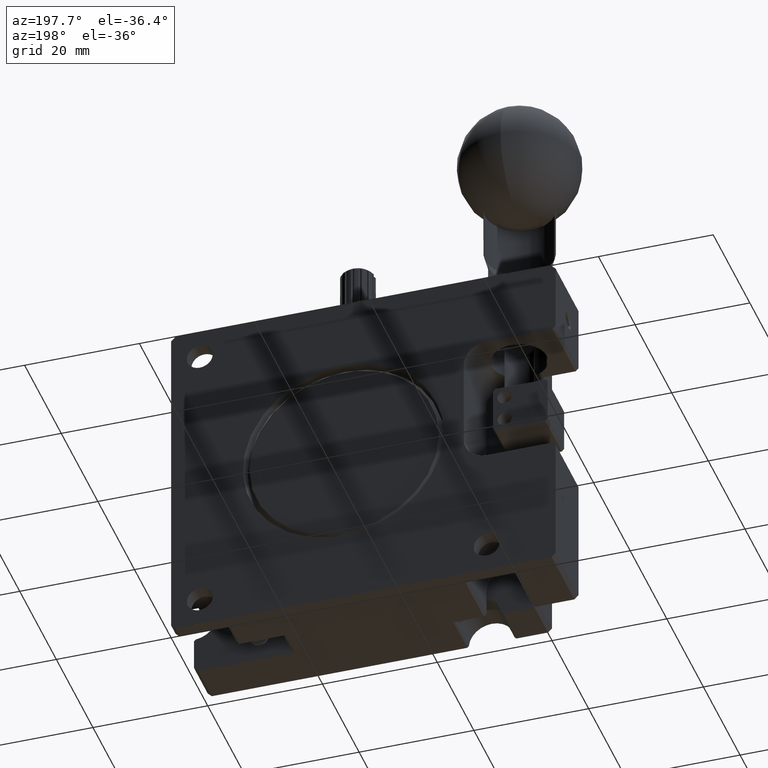
[diagram: clean part render]
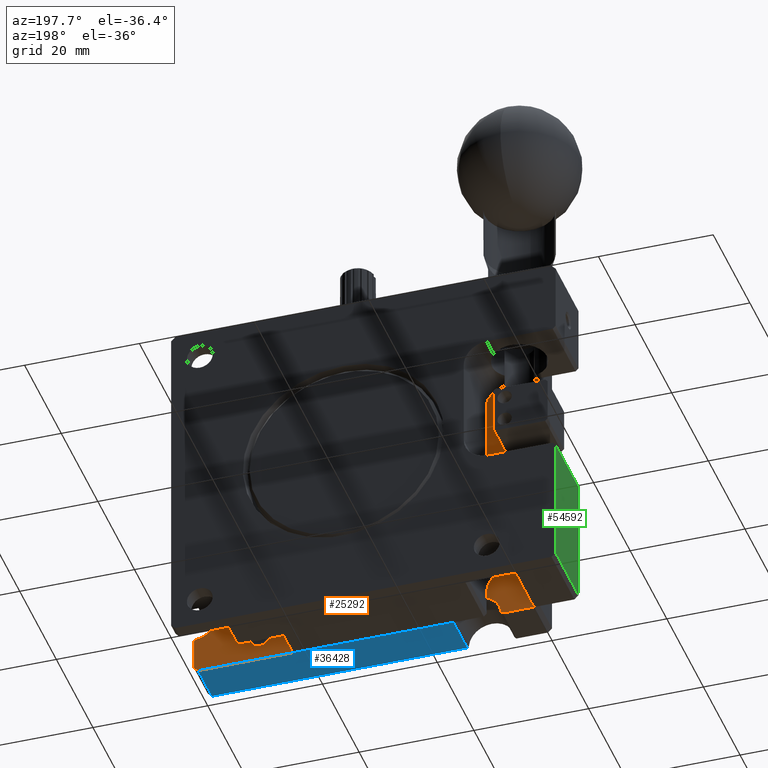
[diagram: same view with three faces highlighted in distinct colors, each labeled with its STEP entity id]
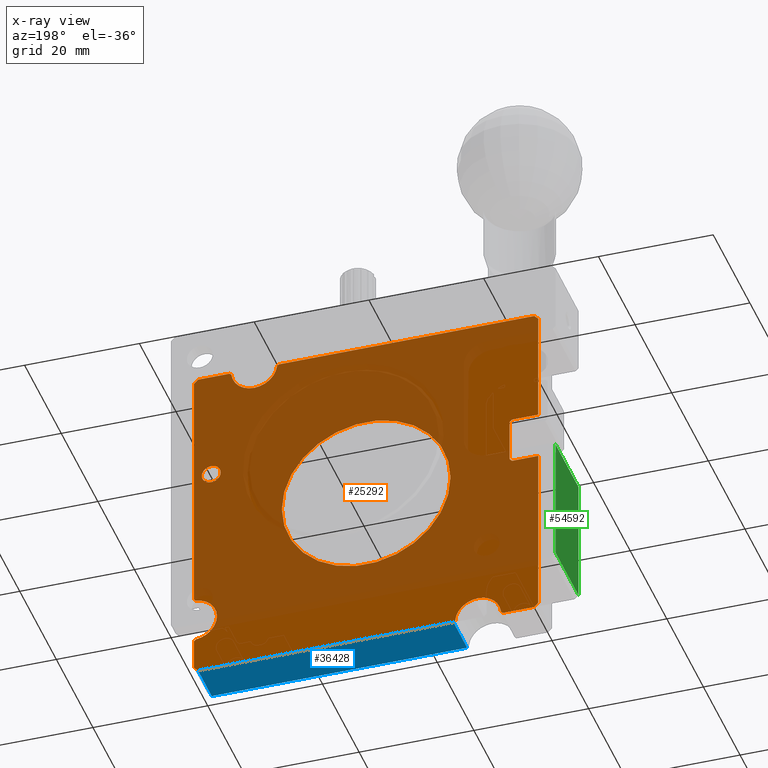
[diagram: x-ray of the same camera — body ghosted, the three highlighted faces saturated]
A machine part, auxiliary view with three faces highlighted in distinct colors.
The next image is the same camera in x-ray (body ghosted, the three faces saturated) — at least one of them is partly hidden behind the body in this view.
Their STEP definitions:

[orange] entity #25292 — the highlighted planar face has unit normal (0, 1, 0).
#106 = ORIENTED_EDGE ( 'NONE', *, *, #36881, .T. ) ;
#427 = VERTEX_POINT ( 'NONE', #36970 ) ;
#567 = CARTESIAN_POINT ( 'NONE',  ( 59.28999999999999915, 7.500000000000000000, 0.000000000000000000 ) ) ;
#590 = DIRECTION ( 'NONE',  ( -0.7071067811865543451, 0.000000000000000000, 0.7071067811865406894 ) ) ;
#1722 = CARTESIAN_POINT ( 'NONE',  ( 14.48799999999975796, 7.500000000000000000, -59.69999999999664198 ) ) ;
#1993 = DIRECTION ( 'NONE',  ( 1.000000000000000000, 0.000000000000000000, -0.000000000000000000 ) ) ;
#2150 = LINE ( 'NONE', #2559, #10806 ) ;
#2559 = CARTESIAN_POINT ( 'NONE',  ( 60.00000000000000000, 7.500000000000000000, -45.21000000000000085 ) ) ;
#3375 = ORIENTED_EDGE ( 'NONE', *, *, #36220, .T. ) ;
#3810 = VECTOR ( 'NONE', #19036, 1000.000000000000000 ) ;
#4004 = ORIENTED_EDGE ( 'NONE', *, *, #24379, .T. ) ;
#5490 = AXIS2_PLACEMENT_3D ( 'NONE', #58922, #85340, #52414 ) ;
#5904 = VERTEX_POINT ( 'NONE', #32317 ) ;
#6697 = CIRCLE ( 'NONE', #78703, 4.000000000000000000 ) ;
#7099 = EDGE_CURVE ( 'NONE', #56663, #45364, #52656, .T. ) ;
#7565 = DIRECTION ( 'NONE',  ( 0.000000000000000000, -1.000000000000000000, 0.000000000000000000 ) ) ;
#7750 = EDGE_CURVE ( 'NONE', #24155, #20764, #30688, .T. ) ;
#7981 = EDGE_CURVE ( 'NONE', #15208, #13604, #77046, .T. ) ;
#8414 = DIRECTION ( 'NONE',  ( 0.000000000000000000, 0.000000000000000000, -1.000000000000000000 ) ) ;
#8633 = LINE ( 'NONE', #35050, #14152 ) ;
#9158 = VERTEX_POINT ( 'NONE', #39035 ) ;
#9197 = VECTOR ( 'NONE', #45924, 1000.000000000000000 ) ;
#9247 = VERTEX_POINT ( 'NONE', #1722 ) ;
#10328 = LINE ( 'NONE', #21306, #40061 ) ;
#10457 = CARTESIAN_POINT ( 'NONE',  ( 59.70000000000000284, 7.500000000000000000, -53.48799999999999955 ) ) ;
#10524 = VERTEX_POINT ( 'NONE', #31631 ) ;
#10757 = EDGE_LOOP ( 'NONE', ( #38680 ) ) ;
#10806 = VECTOR ( 'NONE', #81075, 1000.000000000000114 ) ;
#11342 = EDGE_CURVE ( 'NONE', #28762, #10524, #59012, .T. ) ;
#11395 = VERTEX_POINT ( 'NONE', #82700 ) ;
#11409 = CARTESIAN_POINT ( 'NONE',  ( 7.453889935837842984E-16, 7.500000000000000000, -59.29000000000000625 ) ) ;
#12565 = ORIENTED_EDGE ( 'NONE', *, *, #45188, .T. ) ;
#12809 = CARTESIAN_POINT ( 'NONE',  ( 0.000000000000000000, 7.500000000000000000, -0.7100000000000009637 ) ) ;
#12864 = ORIENTED_EDGE ( 'NONE', *, *, #46181, .T. ) ;
#12899 = DIRECTION ( 'NONE',  ( -1.000000000000000000, -0.000000000000000000, 0.000000000000000000 ) ) ;
#12973 = CARTESIAN_POINT ( 'NONE',  ( 0.000000000000000000, 7.500000000000000000, -20.50000000000000000 ) ) ;
#12986 = VECTOR ( 'NONE', #47845, 1000.000000000000114 ) ;
#13069 = VERTEX_POINT ( 'NONE', #84716 ) ;
#13604 = VERTEX_POINT ( 'NONE', #35082 ) ;
#13624 = EDGE_CURVE ( 'NONE', #52301, #16873, #2150, .T. ) ;
#13747 = LINE ( 'NONE', #32409, #80095 ) ;
#14152 = VECTOR ( 'NONE', #47275, 1000.000000000000000 ) ;
#14331 = VECTOR ( 'NONE', #1993, 1000.000000000000000 ) ;
#14380 = EDGE_CURVE ( 'NONE', #67230, #66382, #49006, .T. ) ;
#14420 = CARTESIAN_POINT ( 'NONE',  ( 6.510999999999985910, 7.500000000000000000, -59.69999999999998863 ) ) ;
#14873 = EDGE_CURVE ( 'NONE', #13069, #62828, #6697, .T. ) ;
#14947 = CARTESIAN_POINT ( 'NONE',  ( 60.00000000000000711, 7.500000000000000000, -45.20999999999999375 ) ) ;
#14997 = CARTESIAN_POINT ( 'NONE',  ( 60.00309693169000269, 7.500000000000000000, -49.49950000000000472 ) ) ;
#15208 = VERTEX_POINT ( 'NONE', #51550 ) ;
#16674 = ORIENTED_EDGE ( 'NONE', *, *, #76592, .T. ) ;
#16793 = CIRCLE ( 'NONE', #39009, 1.649999999999950173 ) ;
#16873 = VERTEX_POINT ( 'NONE', #36642 ) ;
#17053 = CARTESIAN_POINT ( 'NONE',  ( 15.29999999999999716, 7.499999999999996447, -30.00000000000000000 ) ) ;
#17135 = CARTESIAN_POINT ( 'NONE',  ( 60.00000000000000000, 7.500000000000000000, -0.7099999999999999645 ) ) ;
#17488 = CARTESIAN_POINT ( 'NONE',  ( 10.50886380215709970, 7.500000000000000000, -60.10801361977959800 ) ) ;
#17884 = AXIS2_PLACEMENT_3D ( 'NONE', #14997, #80541, #41499 ) ;
#18357 = DIRECTION ( 'NONE',  ( 0.000000000000000000, -1.000000000000000000, 0.000000000000000000 ) ) ;
#18700 = CARTESIAN_POINT ( 'NONE',  ( 4.590000000000000746, 7.500000000000000000, -20.50000000000000000 ) ) ;
#18751 = DIRECTION ( 'NONE',  ( -0.7082823511172732234, 0.000000000000000000, -0.7059292536053366485 ) ) ;
#19036 = DIRECTION ( 'NONE',  ( -1.000000000000000000, -0.000000000000000000, 0.000000000000000000 ) ) ;
#20282 = CARTESIAN_POINT ( 'NONE',  ( 59.28999999999999915, 7.500000000000000000, -60.00000000000000000 ) ) ;
#20482 = LINE ( 'NONE', #47011, #21375 ) ;
#20643 = LINE ( 'NONE', #74884, #48299 ) ;
#20661 = EDGE_CURVE ( 'NONE', #76565, #9158, #45177, .T. ) ;
#20764 = VERTEX_POINT ( 'NONE', #25589 ) ;
#21306 = CARTESIAN_POINT ( 'NONE',  ( 5.000000000000000000, 7.500000000000000000, -28.58999999999999986 ) ) ;
#21375 = VECTOR ( 'NONE', #33503, 1000.000000000000000 ) ;
#21959 = VECTOR ( 'NONE', #71669, 1000.000000000000000 ) ;
#22153 = CARTESIAN_POINT ( 'NONE',  ( 59.70000000000001705, 7.500000000000000000, -53.48800000000000665 ) ) ;
#22702 = EDGE_CURVE ( 'NONE', #32796, #76565, #44267, .T. ) ;
#23188 = VECTOR ( 'NONE', #75432, 1000.000000000000114 ) ;
#23489 = CARTESIAN_POINT ( 'NONE',  ( 45.21000000000000085, 7.500000000000000000, 2.768314089472589949E-15 ) ) ;
#24155 = VERTEX_POINT ( 'NONE', #11409 ) ;
#24379 = EDGE_CURVE ( 'NONE', #80639, #67230, #13747, .T. ) ;
#24449 = CARTESIAN_POINT ( 'NONE',  ( 59.90974984192649799, 7.500000000000000000, -49.50549683841389736 ) ) ;
#24846 = CIRCLE ( 'NONE', #53905, 3.999999998536091006 ) ;
#25087 = CARTESIAN_POINT ( 'NONE',  ( 60.00000000000000000, 7.500000000000000000, -59.28999999999999204 ) ) ;
#25292 = ADVANCED_FACE ( 'NONE', ( #71478, #58496, #25444 ), #32389, .T. ) ;
#25444 = FACE_OUTER_BOUND ( 'NONE', #73594, .T. ) ;
#25589 = CARTESIAN_POINT ( 'NONE',  ( 0.000000000000000000, 7.500000000000000000, -29.00000000000000000 ) ) ;
#25810 = EDGE_CURVE ( 'NONE', #62828, #34002, #20643, .T. ) ;
#26024 = CARTESIAN_POINT ( 'NONE',  ( 5.000000000000000000, 7.500000000000000000, 0.000000000000000000 ) ) ;
#26739 = ORIENTED_EDGE ( 'NONE', *, *, #38179, .T. ) ;
#27702 = EDGE_CURVE ( 'NONE', #78949, #28762, #58258, .T. ) ;
#28116 = EDGE_LOOP ( 'NONE', ( #106 ) ) ;
#28762 = VERTEX_POINT ( 'NONE', #55730 ) ;
#29208 = VERTEX_POINT ( 'NONE', #17053 ) ;
#29403 = EDGE_CURVE ( 'NONE', #11395, #52301, #77491, .T. ) ;
#30027 = CARTESIAN_POINT ( 'NONE',  ( 5.000000000000000000, 7.500000000000000000, -20.91000000000000014 ) ) ;
#30688 = LINE ( 'NONE', #52877, #9197 ) ;
#31083 = EDGE_CURVE ( 'NONE', #72475, #13069, #69517, .T. ) ;
#31631 = CARTESIAN_POINT ( 'NONE',  ( 0.000000000000000000, 7.500000000000000000, -20.49999999999999645 ) ) ;
#32151 = VERTEX_POINT ( 'NONE', #72396 ) ;
#32180 = ORIENTED_EDGE ( 'NONE', *, *, #7750, .T. ) ;
#32317 = CARTESIAN_POINT ( 'NONE',  ( 57.00000000000000000, 7.500000000000000000, -21.64999999999994884 ) ) ;
#32389 = PLANE ( 'NONE',  #5490 ) ;
#32409 = CARTESIAN_POINT ( 'NONE',  ( 59.28999999999999915, 7.500000000000000000, -60.00000000000000000 ) ) ;
#32796 = VERTEX_POINT ( 'NONE', #61739 ) ;
#33130 = VECTOR ( 'NONE', #83975, 1000.000000000000000 ) ;
#33503 = DIRECTION ( 'NONE',  ( 1.000000000000000000, -0.000000000000000000, 0.000000000000000000 ) ) ;
#33999 = ORIENTED_EDGE ( 'NONE', *, *, #72603, .T. ) ;
#34002 = VERTEX_POINT ( 'NONE', #48071 ) ;
#35050 = CARTESIAN_POINT ( 'NONE',  ( 0.000000000000000000, 7.500000000000000000, -59.28999999999999915 ) ) ;
#35082 = CARTESIAN_POINT ( 'NONE',  ( 0.7099999999999999645, 7.500000000000000000, -5.416677968589100837E-32 ) ) ;
#35471 = ORIENTED_EDGE ( 'NONE', *, *, #71784, .T. ) ;
#36220 = EDGE_CURVE ( 'NONE', #45364, #39352, #58976, .T. ) ;
#36642 = CARTESIAN_POINT ( 'NONE',  ( 59.72000000000019071, 7.500000000000000000, -45.50999999999972090 ) ) ;
#36881 = EDGE_CURVE ( 'NONE', #5904, #5904, #16793, .T. ) ;
#36970 = CARTESIAN_POINT ( 'NONE',  ( 5.000000000000000000, 7.500000000000000000, -28.58999999999999986 ) ) ;
#37287 = ORIENTED_EDGE ( 'NONE', *, *, #47081, .T. ) ;
#38077 = ORIENTED_EDGE ( 'NONE', *, *, #69533, .T. ) ;
#38179 = EDGE_CURVE ( 'NONE', #10524, #15208, #8633, .T. ) ;
#38340 = DIRECTION ( 'NONE',  ( 0.000000000000000000, 0.000000000000000000, -1.000000000000000000 ) ) ;
#38680 = ORIENTED_EDGE ( 'NONE', *, *, #77216, .T. ) ;
#39009 = AXIS2_PLACEMENT_3D ( 'NONE', #81647, #67396, #68660 ) ;
#39035 = CARTESIAN_POINT ( 'NONE',  ( 60.00000000000000000, 7.500000000000000000, -53.78900000000000148 ) ) ;
#39352 = VERTEX_POINT ( 'NONE', #47182 ) ;
#40061 = VECTOR ( 'NONE', #47414, 1000.000000000000000 ) ;
#40299 = ORIENTED_EDGE ( 'NONE', *, *, #20661, .T. ) ;
#41499 = DIRECTION ( 'NONE',  ( 0.000000000000000000, 0.000000000000000000, -1.000000000000000000 ) ) ;
#41841 = CARTESIAN_POINT ( 'NONE',  ( 4.590000000000000746, 7.500000000000000000, -29.00000000000000000 ) ) ;
#42034 = VECTOR ( 'NONE', #590, 1000.000000000000000 ) ;
#42054 = CARTESIAN_POINT ( 'NONE',  ( 14.78899999999999970, 7.500000000000000000, -60.00000000000000000 ) ) ;
#42450 = VECTOR ( 'NONE', #51475, 1000.000000000000000 ) ;
#43261 = ORIENTED_EDGE ( 'NONE', *, *, #14380, .T. ) ;
#43885 = DIRECTION ( 'NONE',  ( -1.000000000000000000, 3.540251991789400925E-16, 0.000000000000000000 ) ) ;
#44267 = CIRCLE ( 'NONE', #17884, 4.000000000000003553 ) ;
#44286 = ORIENTED_EDGE ( 'NONE', *, *, #13624, .T. ) ;
#44668 = CARTESIAN_POINT ( 'NONE',  ( 14.78899999999999970, 7.500000000000000000, -60.00000000000000000 ) ) ;
#45177 = LINE ( 'NONE', #10457, #78885 ) ;
#45188 = EDGE_CURVE ( 'NONE', #20764, #68207, #68364, .T. ) ;
#45364 = VERTEX_POINT ( 'NONE', #57816 ) ;
#45558 = CIRCLE ( 'NONE', #74611, 3.999999999363783143 ) ;
#45924 = DIRECTION ( 'NONE',  ( -0.000000000000000000, -0.000000000000000000, 1.000000000000000000 ) ) ;
#46181 = EDGE_CURVE ( 'NONE', #39352, #24155, #60030, .T. ) ;
#46798 = DIRECTION ( 'NONE',  ( -1.000000000000000000, -0.000000000000000000, 0.000000000000000000 ) ) ;
#46843 = EDGE_CURVE ( 'NONE', #32151, #11395, #73442, .T. ) ;
#47011 = CARTESIAN_POINT ( 'NONE',  ( 0.7099999999999999645, 7.500000000000000000, 0.000000000000000000 ) ) ;
#47081 = EDGE_CURVE ( 'NONE', #427, #78949, #84616, .T. ) ;
#47182 = CARTESIAN_POINT ( 'NONE',  ( 0.7100000000000080691, 7.500000000000000000, -60.00000000000000000 ) ) ;
#47275 = DIRECTION ( 'NONE',  ( -0.000000000000000000, -0.000000000000000000, 1.000000000000000000 ) ) ;
#47410 = VECTOR ( 'NONE', #46798, 1000.000000000000000 ) ;
#47414 = DIRECTION ( 'NONE',  ( 0.7071067811865470176, 0.000000000000000000, 0.7071067811865480168 ) ) ;
#47715 = ORIENTED_EDGE ( 'NONE', *, *, #69348, .T. ) ;
#47845 = DIRECTION ( 'NONE',  ( 0.7071067811865452413, 0.000000000000000000, -0.7071067811865499042 ) ) ;
#48048 = VECTOR ( 'NONE', #18751, 1000.000000000000114 ) ;
#48071 = CARTESIAN_POINT ( 'NONE',  ( 53.78900000000000858, 7.500000000000000000, 5.421010862427520592E-15 ) ) ;
#48291 = CARTESIAN_POINT ( 'NONE',  ( 0.7100000000000090683, 7.500000000000000000, -60.00000000000000000 ) ) ;
#48299 = VECTOR ( 'NONE', #55388, 1000.000000000000000 ) ;
#48441 = ORIENTED_EDGE ( 'NONE', *, *, #46843, .T. ) ;
#49006 = LINE ( 'NONE', #42054, #23188 ) ;
#49166 = ORIENTED_EDGE ( 'NONE', *, *, #7099, .T. ) ;
#49508 = LINE ( 'NONE', #75953, #58256 ) ;
#50443 = CARTESIAN_POINT ( 'NONE',  ( 0.000000000000000000, 7.500000000000000000, -29.00000000000000000 ) ) ;
#50560 = EDGE_CURVE ( 'NONE', #34002, #32151, #20482, .T. ) ;
#51025 = LINE ( 'NONE', #17135, #58309 ) ;
#51422 = DIRECTION ( 'NONE',  ( -0.000000000000000000, -1.000000000000000000, -0.000000000000000000 ) ) ;
#51475 = DIRECTION ( 'NONE',  ( 0.7071067811865470176, 0.000000000000000000, 0.7071067811865481278 ) ) ;
#51550 = CARTESIAN_POINT ( 'NONE',  ( 2.710505431213761701E-17, 7.500000000000000000, -0.7100000000000011857 ) ) ;
#52301 = VERTEX_POINT ( 'NONE', #14947 ) ;
#52414 = DIRECTION ( 'NONE',  ( 0.000000000000000000, -0.000000000000000000, 1.000000000000000000 ) ) ;
#52501 = AXIS2_PLACEMENT_3D ( 'NONE', #60066, #7565, #8414 ) ;
#52656 = LINE ( 'NONE', #77360, #48048 ) ;
#52877 = CARTESIAN_POINT ( 'NONE',  ( 0.000000000000000000, 7.500000000000000000, -59.28999999999999915 ) ) ;
#53008 = CARTESIAN_POINT ( 'NONE',  ( 60.00000000000000000, 7.500000000000000000, -59.28999999999999915 ) ) ;
#53905 = AXIS2_PLACEMENT_3D ( 'NONE', #24449, #51422, #84781 ) ;
#55388 = DIRECTION ( 'NONE',  ( 0.7082823511173941267, 0.000000000000000000, 0.7059292536052153011 ) ) ;
#55730 = CARTESIAN_POINT ( 'NONE',  ( 4.590000000000000746, 7.500000000000000000, -20.50000000000000000 ) ) ;
#56663 = VERTEX_POINT ( 'NONE', #14420 ) ;
#56755 = VECTOR ( 'NONE', #65151, 1000.000000000000114 ) ;
#57372 = VECTOR ( 'NONE', #65569, 1000.000000000000000 ) ;
#57764 = DIRECTION ( 'NONE',  ( 1.000000000000000000, -0.000000000000000000, 0.000000000000000000 ) ) ;
#57816 = CARTESIAN_POINT ( 'NONE',  ( 6.210000000000009734, 7.500000000000000000, -60.00000000000000000 ) ) ;
#58256 = VECTOR ( 'NONE', #57764, 1000.000000000000000 ) ;
#58258 = LINE ( 'NONE', #18700, #21959 ) ;
#58309 = VECTOR ( 'NONE', #64900, 1000.000000000000000 ) ;
#58436 = CARTESIAN_POINT ( 'NONE',  ( 60.00000000000000000, 7.500000000000000000, -0.7099999999999999645 ) ) ;
#58496 = FACE_BOUND ( 'NONE', #10757, .T. ) ;
#58922 = CARTESIAN_POINT ( 'NONE',  ( 0.000000000000000000, 7.500000000000000000, 0.000000000000000000 ) ) ;
#58976 = LINE ( 'NONE', #20282, #47410 ) ;
#59012 = LINE ( 'NONE', #12973, #3810 ) ;
#59021 = ORIENTED_EDGE ( 'NONE', *, *, #22702, .T. ) ;
#59567 = ORIENTED_EDGE ( 'NONE', *, *, #50560, .T. ) ;
#60030 = LINE ( 'NONE', #48291, #42034 ) ;
#60066 = CARTESIAN_POINT ( 'NONE',  ( 10.49949999999999939, 7.500000000000000000, -60.00309693169000269 ) ) ;
#61739 = CARTESIAN_POINT ( 'NONE',  ( 59.70000000000910489, 7.500000000000000000, -45.51099999999929935 ) ) ;
#62828 = VERTEX_POINT ( 'NONE', #65984 ) ;
#63022 = DIRECTION ( 'NONE',  ( 0.7316594712539654655, 0.000000000000000000, -0.6816703148328873141 ) ) ;
#63747 = CARTESIAN_POINT ( 'NONE',  ( 59.28999999999999915, 7.500000000000000000, -60.00000000000000000 ) ) ;
#63839 = DIRECTION ( 'NONE',  ( 0.7059292536052866884, 0.000000000000000000, -0.7082823511173229614 ) ) ;
#64900 = DIRECTION ( 'NONE',  ( -0.000000000000000000, -0.000000000000000000, -1.000000000000000000 ) ) ;
#65151 = DIRECTION ( 'NONE',  ( -0.7071067811865474617, 0.000000000000000000, -0.7071067811865474617 ) ) ;
#65183 = AXIS2_PLACEMENT_3D ( 'NONE', #82449, #81624, #43885 ) ;
#65569 = DIRECTION ( 'NONE',  ( 0.000000000000000000, -0.000000000000000000, 1.000000000000000000 ) ) ;
#65620 = ORIENTED_EDGE ( 'NONE', *, *, #29403, .T. ) ;
#65889 = CARTESIAN_POINT ( 'NONE',  ( 14.49000000000009258, 7.500000000000000000, -59.71999999999999886 ) ) ;
#65984 = CARTESIAN_POINT ( 'NONE',  ( 53.48800000000006349, 7.500000000000000000, -0.2999999999999033440 ) ) ;
#66382 = VERTEX_POINT ( 'NONE', #65889 ) ;
#66424 = LINE ( 'NONE', #53008, #56755 ) ;
#67010 = ORIENTED_EDGE ( 'NONE', *, *, #14873, .T. ) ;
#67230 = VERTEX_POINT ( 'NONE', #44668 ) ;
#67396 = DIRECTION ( 'NONE',  ( 0.000000000000000000, -1.000000000000000000, 0.000000000000000000 ) ) ;
#67957 = CIRCLE ( 'NONE', #65183, 14.70000000000000462 ) ;
#68207 = VERTEX_POINT ( 'NONE', #41841 ) ;
#68364 = LINE ( 'NONE', #50443, #14331 ) ;
#68660 = DIRECTION ( 'NONE',  ( 0.000000000000000000, 0.000000000000000000, -1.000000000000000000 ) ) ;
#68925 = ORIENTED_EDGE ( 'NONE', *, *, #69947, .T. ) ;
#69200 = VECTOR ( 'NONE', #63022, 1000.000000000000114 ) ;
#69348 = EDGE_CURVE ( 'NONE', #16873, #32796, #24846, .T. ) ;
#69517 = LINE ( 'NONE', #23489, #69200 ) ;
#69533 = EDGE_CURVE ( 'NONE', #9247, #56663, #82844, .T. ) ;
#69947 = EDGE_CURVE ( 'NONE', #66382, #9247, #45558, .T. ) ;
#70450 = DIRECTION ( 'NONE',  ( -0.000000000000000000, -1.000000000000000000, -0.000000000000000000 ) ) ;
#70724 = ORIENTED_EDGE ( 'NONE', *, *, #7981, .T. ) ;
#71478 = FACE_BOUND ( 'NONE', #28116, .T. ) ;
#71669 = DIRECTION ( 'NONE',  ( -0.7071067811865470176, 0.000000000000000000, 0.7071067811865480168 ) ) ;
#71784 = EDGE_CURVE ( 'NONE', #81559, #80639, #66424, .T. ) ;
#71916 = ORIENTED_EDGE ( 'NONE', *, *, #31083, .T. ) ;
#72396 = CARTESIAN_POINT ( 'NONE',  ( 59.29000000000000625, 7.500000000000000000, -2.574980159653064156E-16 ) ) ;
#72475 = VERTEX_POINT ( 'NONE', #77788 ) ;
#72603 = EDGE_CURVE ( 'NONE', #68207, #427, #10328, .T. ) ;
#73442 = LINE ( 'NONE', #567, #12986 ) ;
#73594 = EDGE_LOOP ( 'NONE', ( #33999, #37287, #78312, #81570, #26739, #70724, #16674, #71916, #67010, #82494, #59567, #48441, #65620, #44286, #47715, #59021, #40299, #77314, #35471, #4004, #43261, #68925, #38077, #49166, #3375, #12864, #32180, #12565 ) ) ;
#74611 = AXIS2_PLACEMENT_3D ( 'NONE', #17488, #70450, #84310 ) ;
#74884 = CARTESIAN_POINT ( 'NONE',  ( 53.48799999999999955, 7.500000000000000000, -0.2999999999999310440 ) ) ;
#75432 = DIRECTION ( 'NONE',  ( -0.7299177350910426298, 0.000000000000000000, 0.6835350027610601620 ) ) ;
#75953 = CARTESIAN_POINT ( 'NONE',  ( 0.7099999999999999645, 7.500000000000000000, 0.000000000000000000 ) ) ;
#76565 = VERTEX_POINT ( 'NONE', #22153 ) ;
#76592 = EDGE_CURVE ( 'NONE', #13604, #72475, #49508, .T. ) ;
#77046 = LINE ( 'NONE', #12809, #42450 ) ;
#77216 = EDGE_CURVE ( 'NONE', #29208, #29208, #67957, .T. ) ;
#77314 = ORIENTED_EDGE ( 'NONE', *, *, #78594, .T. ) ;
#77360 = CARTESIAN_POINT ( 'NONE',  ( 6.510999999999969923, 7.500000000000000000, -59.70000000000000284 ) ) ;
#77491 = LINE ( 'NONE', #58436, #33130 ) ;
#77788 = CARTESIAN_POINT ( 'NONE',  ( 45.21000000000001506, 7.500000000000000000, -2.640402261601532845E-15 ) ) ;
#78269 = CARTESIAN_POINT ( 'NONE',  ( 49.50999999999999801, 7.500000000000000000, 0.1189462972740070040 ) ) ;
#78312 = ORIENTED_EDGE ( 'NONE', *, *, #27702, .T. ) ;
#78594 = EDGE_CURVE ( 'NONE', #9158, #81559, #51025, .T. ) ;
#78703 = AXIS2_PLACEMENT_3D ( 'NONE', #78269, #18357, #38340 ) ;
#78885 = VECTOR ( 'NONE', #63839, 1000.000000000000000 ) ;
#78949 = VERTEX_POINT ( 'NONE', #30027 ) ;
#80095 = VECTOR ( 'NONE', #12899, 1000.000000000000000 ) ;
#80541 = DIRECTION ( 'NONE',  ( 0.000000000000000000, -1.000000000000000000, 0.000000000000000000 ) ) ;
#80639 = VERTEX_POINT ( 'NONE', #63747 ) ;
#81075 = DIRECTION ( 'NONE',  ( -0.6823182503601129545, 0.000000000000000000, -0.7310552682427740034 ) ) ;
#81559 = VERTEX_POINT ( 'NONE', #25087 ) ;
#81570 = ORIENTED_EDGE ( 'NONE', *, *, #11342, .T. ) ;
#81624 = DIRECTION ( 'NONE',  ( -3.469446951953612710E-16, -1.000000000000000000, -2.891205793294679312E-17 ) ) ;
#81647 = CARTESIAN_POINT ( 'NONE',  ( 57.00000000000000000, 7.500000000000000000, -20.00000000000000000 ) ) ;
#82449 = CARTESIAN_POINT ( 'NONE',  ( 30.00000000000000355, 7.499999999999991118, -30.00000000000000000 ) ) ;
#82494 = ORIENTED_EDGE ( 'NONE', *, *, #25810, .T. ) ;
#82700 = CARTESIAN_POINT ( 'NONE',  ( 60.00000000000000000, 7.500000000000000000, -0.7100000000000001865 ) ) ;
#82844 = CIRCLE ( 'NONE', #52501, 3.999999999999996447 ) ;
#83975 = DIRECTION ( 'NONE',  ( -0.000000000000000000, -0.000000000000000000, -1.000000000000000000 ) ) ;
#84310 = DIRECTION ( 'NONE',  ( 8.500145033638338661E-13, 0.000000000000000000, 1.000000000000000000 ) ) ;
#84616 = LINE ( 'NONE', #26024, #57372 ) ;
#84716 = CARTESIAN_POINT ( 'NONE',  ( 45.53199999999993253, 7.500000000000000000, -0.2999999999999210520 ) ) ;
#84781 = DIRECTION ( 'NONE',  ( 3.469446953223352869E-15, 0.000000000000000000, 1.000000000000000000 ) ) ;
#85340 = DIRECTION ( 'NONE',  ( 0.000000000000000000, 1.000000000000000000, 0.000000000000000000 ) ) ;

[blue] entity #36428 — the highlighted planar face has unit normal (0, 0, 1).
#6885 = EDGE_CURVE ( 'NONE', #67230, #8106, #44999, .T. ) ;
#7573 = VECTOR ( 'NONE', #68129, 1000.000000000000000 ) ;
#8106 = VERTEX_POINT ( 'NONE', #16177 ) ;
#9824 = DIRECTION ( 'NONE',  ( 0.000000000000000000, 0.000000000000000000, 1.000000000000000000 ) ) ;
#12899 = DIRECTION ( 'NONE',  ( -1.000000000000000000, -0.000000000000000000, 0.000000000000000000 ) ) ;
#13747 = LINE ( 'NONE', #32409, #80095 ) ;
#13819 = VERTEX_POINT ( 'NONE', #47630 ) ;
#15152 = CARTESIAN_POINT ( 'NONE',  ( 59.28999999999999915, 7.500000000000000000, -60.00000000000000000 ) ) ;
#16177 = CARTESIAN_POINT ( 'NONE',  ( 14.78900000000000148, 0.000000000000000000, -60.00000000000000000 ) ) ;
#18099 = VECTOR ( 'NONE', #59381, 1000.000000000000000 ) ;
#18979 = CARTESIAN_POINT ( 'NONE',  ( 0.000000000000000000, 0.000000000000000000, -60.00000000000000000 ) ) ;
#24379 = EDGE_CURVE ( 'NONE', #80639, #67230, #13747, .T. ) ;
#24901 = ORIENTED_EDGE ( 'NONE', *, *, #6885, .F. ) ;
#28903 = FACE_OUTER_BOUND ( 'NONE', #28963, .T. ) ;
#28963 = EDGE_LOOP ( 'NONE', ( #24901, #84993, #73100, #67865 ) ) ;
#31924 = DIRECTION ( 'NONE',  ( 0.000000000000000000, -1.000000000000000000, -0.000000000000000000 ) ) ;
#32409 = CARTESIAN_POINT ( 'NONE',  ( 59.28999999999999915, 7.500000000000000000, -60.00000000000000000 ) ) ;
#32846 = LINE ( 'NONE', #18979, #18099 ) ;
#36244 = AXIS2_PLACEMENT_3D ( 'NONE', #48920, #9824, #64083 ) ;
#36428 = ADVANCED_FACE ( 'NONE', ( #28903 ), #81830, .F. ) ;
#38452 = CARTESIAN_POINT ( 'NONE',  ( 14.78900000000000325, 7.500000000000000000, -60.00000000000000000 ) ) ;
#44668 = CARTESIAN_POINT ( 'NONE',  ( 14.78899999999999970, 7.500000000000000000, -60.00000000000000000 ) ) ;
#44999 = LINE ( 'NONE', #38452, #75693 ) ;
#47630 = CARTESIAN_POINT ( 'NONE',  ( 59.28999999999999915, -1.734723475976807094E-15, -60.00000000000000000 ) ) ;
#48920 = CARTESIAN_POINT ( 'NONE',  ( 59.28999999999999915, 7.500000000000000000, -60.00000000000000000 ) ) ;
#50923 = EDGE_CURVE ( 'NONE', #13819, #80639, #62457, .T. ) ;
#59381 = DIRECTION ( 'NONE',  ( -1.000000000000000000, -0.000000000000000000, 0.000000000000000000 ) ) ;
#62457 = LINE ( 'NONE', #15152, #7573 ) ;
#63747 = CARTESIAN_POINT ( 'NONE',  ( 59.28999999999999915, 7.500000000000000000, -60.00000000000000000 ) ) ;
#64083 = DIRECTION ( 'NONE',  ( 1.000000000000000000, 0.000000000000000000, -0.000000000000000000 ) ) ;
#67230 = VERTEX_POINT ( 'NONE', #44668 ) ;
#67865 = ORIENTED_EDGE ( 'NONE', *, *, #79900, .T. ) ;
#68129 = DIRECTION ( 'NONE',  ( -0.000000000000000000, 1.000000000000000000, 0.000000000000000000 ) ) ;
#73100 = ORIENTED_EDGE ( 'NONE', *, *, #50923, .F. ) ;
#75693 = VECTOR ( 'NONE', #31924, 1000.000000000000000 ) ;
#79900 = EDGE_CURVE ( 'NONE', #13819, #8106, #32846, .T. ) ;
#80095 = VECTOR ( 'NONE', #12899, 1000.000000000000000 ) ;
#80639 = VERTEX_POINT ( 'NONE', #63747 ) ;
#81830 = PLANE ( 'NONE',  #36244 ) ;
#84993 = ORIENTED_EDGE ( 'NONE', *, *, #24379, .F. ) ;

[green] entity #54592 — the highlighted planar face has unit normal (-1, 0, 0).
#1327 = LINE ( 'NONE', #1760, #39362 ) ;
#1760 = CARTESIAN_POINT ( 'NONE',  ( -7.000000000000000000, 20.00000000000000000, 0.000000000000000000 ) ) ;
#1961 = EDGE_CURVE ( 'NONE', #65813, #5965, #44914, .T. ) ;
#3389 = EDGE_LOOP ( 'NONE', ( #41487, #32496, #59850, #13832 ) ) ;
#4896 = CARTESIAN_POINT ( 'NONE',  ( -7.000000000000000000, 7.500000000000000000, -59.28999999999999915 ) ) ;
#5965 = VERTEX_POINT ( 'NONE', #56280 ) ;
#10535 = FACE_OUTER_BOUND ( 'NONE', #3389, .T. ) ;
#12329 = DIRECTION ( 'NONE',  ( 0.000000000000000000, 1.000000000000000000, -0.000000000000000000 ) ) ;
#13832 = ORIENTED_EDGE ( 'NONE', *, *, #1961, .T. ) ;
#15327 = CARTESIAN_POINT ( 'NONE',  ( -7.000000000000000000, 7.500000000000000000, -59.28999999999999915 ) ) ;
#19159 = CARTESIAN_POINT ( 'NONE',  ( -7.000000000000000000, 20.00000000000000000, -59.28999999999999915 ) ) ;
#21163 = CARTESIAN_POINT ( 'NONE',  ( -7.000000000000000000, 7.500000000000000000, -59.28999999999999915 ) ) ;
#22336 = VERTEX_POINT ( 'NONE', #19159 ) ;
#24366 = DIRECTION ( 'NONE',  ( -1.000000000000000000, 0.000000000000000000, 0.000000000000000000 ) ) ;
#28287 = CARTESIAN_POINT ( 'NONE',  ( -7.000000000000000000, 7.500000000000000000, -59.28999999999999915 ) ) ;
#32496 = ORIENTED_EDGE ( 'NONE', *, *, #78778, .T. ) ;
#38265 = VERTEX_POINT ( 'NONE', #21163 ) ;
#39362 = VECTOR ( 'NONE', #48599, 1000.000000000000000 ) ;
#40475 = LINE ( 'NONE', #28287, #68380 ) ;
#41487 = ORIENTED_EDGE ( 'NONE', *, *, #50931, .F. ) ;
#43951 = DIRECTION ( 'NONE',  ( 0.000000000000000000, 0.000000000000000000, 1.000000000000000000 ) ) ;
#44571 = EDGE_CURVE ( 'NONE', #38265, #65813, #40475, .T. ) ;
#44914 = LINE ( 'NONE', #78723, #81074 ) ;
#45098 = AXIS2_PLACEMENT_3D ( 'NONE', #4896, #24366, #43951 ) ;
#48377 = CARTESIAN_POINT ( 'NONE',  ( -7.000000000000000888, 7.500000000000000000, -37.00000000000000000 ) ) ;
#48599 = DIRECTION ( 'NONE',  ( 0.000000000000000000, -0.000000000000000000, 1.000000000000000000 ) ) ;
#50931 = EDGE_CURVE ( 'NONE', #22336, #5965, #1327, .T. ) ;
#54446 = LINE ( 'NONE', #15327, #84574 ) ;
#54592 = ADVANCED_FACE ( 'NONE', ( #10535 ), #76473, .T. ) ;
#56280 = CARTESIAN_POINT ( 'NONE',  ( -7.000000000000001776, 20.00000000000000000, -37.00000000000000000 ) ) ;
#59850 = ORIENTED_EDGE ( 'NONE', *, *, #44571, .T. ) ;
#65813 = VERTEX_POINT ( 'NONE', #48377 ) ;
#68380 = VECTOR ( 'NONE', #81217, 1000.000000000000000 ) ;
#76473 = PLANE ( 'NONE',  #45098 ) ;
#78723 = CARTESIAN_POINT ( 'NONE',  ( -7.000000000000000000, 7.500000000000000000, -37.00000000000000000 ) ) ;
#78778 = EDGE_CURVE ( 'NONE', #22336, #38265, #54446, .T. ) ;
#80862 = DIRECTION ( 'NONE',  ( -0.000000000000000000, -1.000000000000000000, 0.000000000000000000 ) ) ;
#81074 = VECTOR ( 'NONE', #12329, 1000.000000000000000 ) ;
#81217 = DIRECTION ( 'NONE',  ( 0.000000000000000000, 0.000000000000000000, 1.000000000000000000 ) ) ;
#84574 = VECTOR ( 'NONE', #80862, 1000.000000000000000 ) ;